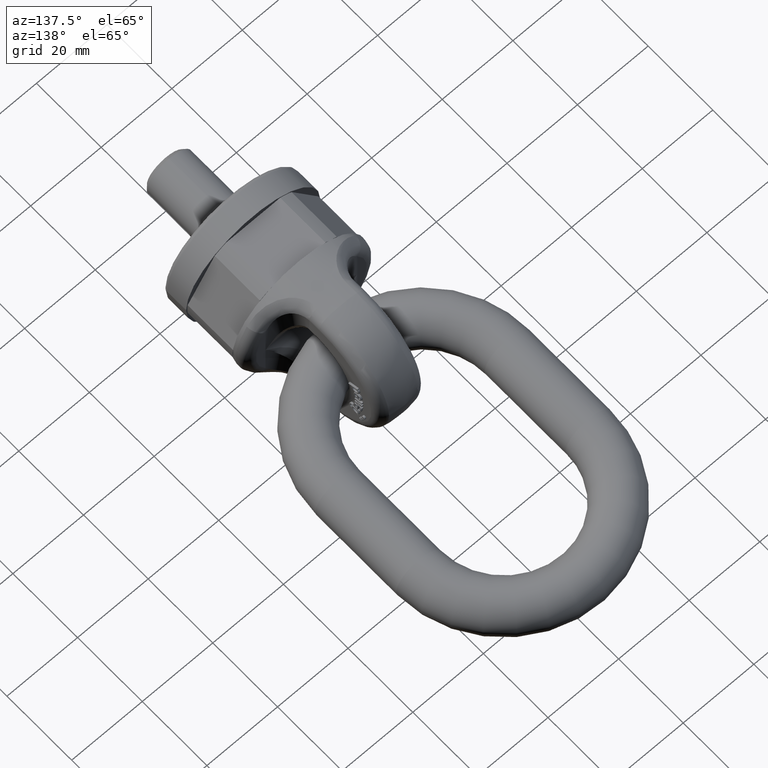
[diagram: clean part render]
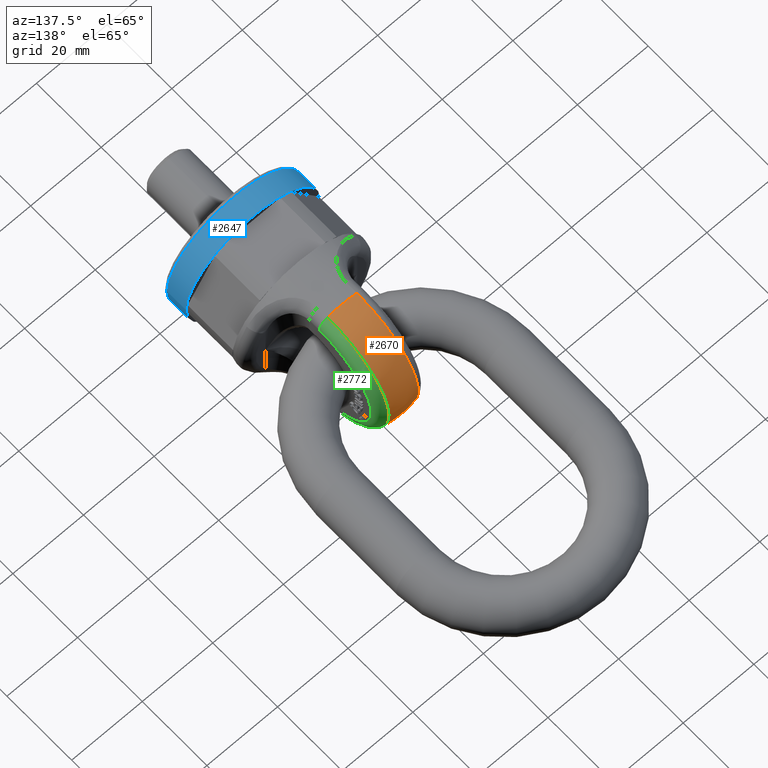
[diagram: same view with three faces highlighted in distinct colors, each labeled with its STEP entity id]
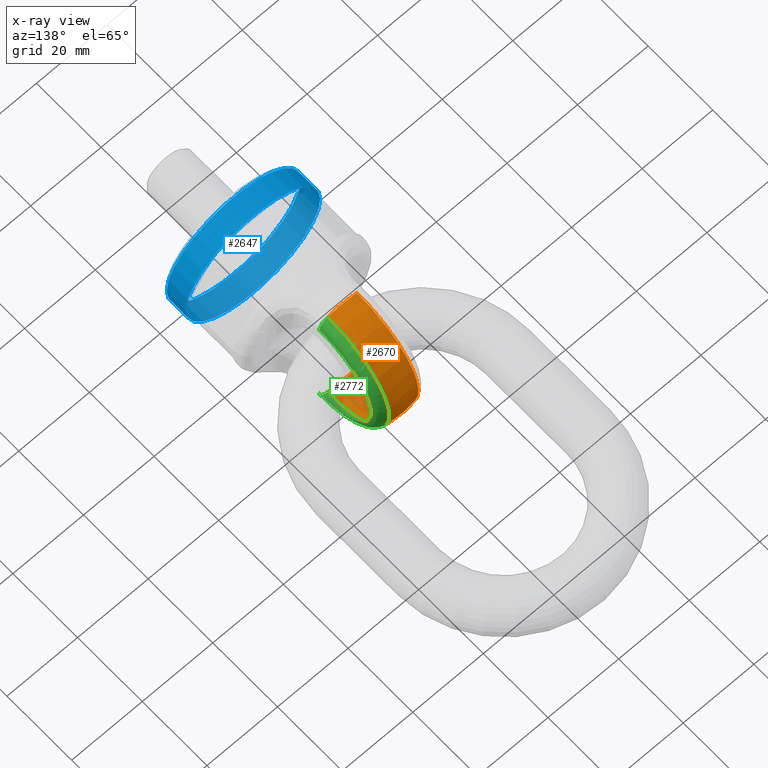
[diagram: x-ray of the same camera — body ghosted, the three highlighted faces saturated]
A machine part, auxiliary view with three faces highlighted in distinct colors.
The next image is the same camera in x-ray (body ghosted, the three faces saturated) — at least one of them is partly hidden behind the body in this view.
Their STEP definitions:

[orange] entity #2670 — the highlighted spherical surface has radius 19 mm.
#315=SPHERICAL_SURFACE('',#5660,19.);
#1822=FACE_OUTER_BOUND('',#3106,.T.);
#2670=ADVANCED_FACE('',(#1822),#315,.T.);
#3106=EDGE_LOOP('',(#3534,#3535,#3536,#3537));
#3534=ORIENTED_EDGE('',*,*,#5068,.F.);
#3535=ORIENTED_EDGE('',*,*,#5079,.T.);
#3536=ORIENTED_EDGE('',*,*,#5074,.F.);
#3537=ORIENTED_EDGE('',*,*,#5080,.T.);
#4655=VERTEX_POINT('',#7027);
#4656=VERTEX_POINT('',#7029);
#4661=VERTEX_POINT('',#7063);
#4662=VERTEX_POINT('',#7065);
#5068=EDGE_CURVE('',#4655,#4656,#5562,.T.);
#5074=EDGE_CURVE('',#4661,#4662,#5564,.T.);
#5079=EDGE_CURVE('',#4655,#4662,#5566,.T.);
#5080=EDGE_CURVE('',#4661,#4656,#5567,.T.);
#5562=CIRCLE('',#5653,18.9937982914999);
#5564=CIRCLE('',#5655,18.9937982914999);
#5566=CIRCLE('',#5658,18.5398378077452);
#5567=CIRCLE('',#5659,18.5398378077452);
#5653=AXIS2_PLACEMENT_3D('',#7028,#5969,#5970);
#5655=AXIS2_PLACEMENT_3D('',#7064,#5973,#5974);
#5658=AXIS2_PLACEMENT_3D('',#7095,#5979,#5980);
#5659=AXIS2_PLACEMENT_3D('',#7096,#5981,#5982);
#5660=AXIS2_PLACEMENT_3D('',#7097,#5983,#5984);
#5969=DIRECTION('',(0.,-1.,0.));
#5970=DIRECTION('',(0.,0.,-1.));
#5973=DIRECTION('',(0.,-1.,0.));
#5974=DIRECTION('',(0.,0.,-1.));
#5979=DIRECTION('',(1.,3.58908305374512E-16,2.34291072916505E-15));
#5980=DIRECTION('',(3.74269396305529E-16,-1.,8.31045002381911E-31));
#5981=DIRECTION('',(-1.,3.58908305374512E-16,0.));
#5982=DIRECTION('',(-3.74269396305529E-16,-1.,0.));
#5983=DIRECTION('',(6.12323399573677E-17,-1.,0.));
#5984=DIRECTION('',(1.,0.,0.));
#7027=CARTESIAN_POINT('',(-4.15624999999995,34.514586298282,-18.5334821195501));
#7028=CARTESIAN_POINT('',(0.,34.514586298282,0.));
#7029=CARTESIAN_POINT('',(4.15625,34.514586298282,-18.5334821195501));
#7063=CARTESIAN_POINT('',(4.15625,34.514586298282,18.5334821195501));
#7064=CARTESIAN_POINT('',(0.,34.514586298282,0.));
#7065=CARTESIAN_POINT('',(-4.15625000000004,34.514586298282,18.5334821195501));
#7095=CARTESIAN_POINT('',(-4.15625,35.,-9.73772271809223E-15));
#7096=CARTESIAN_POINT('',(4.15625,35.,0.));
#7097=CARTESIAN_POINT('',(0.,35.,0.));

[blue] entity #2647 — the highlighted cylindrical surface (bore or boss wall) has radius 19 mm, axis along (0, -1, 0).
#2020=CYLINDRICAL_SURFACE('',#5616,19.);
#2647=ADVANCED_FACE('',(#2997,#2998),#2020,.T.);
#2997=FACE_BOUND('',#3069,.T.);
#2998=FACE_BOUND('',#3070,.T.);
#3069=EDGE_LOOP('',(#3366));
#3070=EDGE_LOOP('',(#3367));
#3366=ORIENTED_EDGE('',*,*,#4956,.T.);
#3367=ORIENTED_EDGE('',*,*,#4943,.T.);
#4545=VERTEX_POINT('',#6576);
#4558=VERTEX_POINT('',#6603);
#4943=EDGE_CURVE('',#4545,#4545,#5539,.T.);
#4956=EDGE_CURVE('',#4558,#4558,#5546,.T.);
#5539=CIRCLE('',#5607,19.);
#5546=CIRCLE('',#5615,19.);
#5607=AXIS2_PLACEMENT_3D('',#6575,#5817,#5818);
#5615=AXIS2_PLACEMENT_3D('',#6602,#5839,#5840);
#5616=AXIS2_PLACEMENT_3D('',#6604,#5841,#5842);
#5817=DIRECTION('',(3.82702124733548E-17,-1.,0.));
#5818=DIRECTION('',(1.,4.56506177888633E-17,0.));
#5839=DIRECTION('',(-3.82702124733548E-17,1.,0.));
#5840=DIRECTION('',(1.,3.42379633416475E-17,0.));
#5841=DIRECTION('',(3.82702124733548E-17,-1.,0.));
#5842=DIRECTION('',(1.,4.56506177888633E-17,0.));
#6575=CARTESIAN_POINT('',(-2.67891487313483E-16,7.,0.));
#6576=CARTESIAN_POINT('',(19.,7.,0.));
#6602=CARTESIAN_POINT('',(-3.82702124733548E-17,0.999999999999999,0.));
#6603=CARTESIAN_POINT('',(19.,1.,0.));
#6604=CARTESIAN_POINT('',(-2.67891487313483E-16,7.,0.));

[green] entity #2772 — the highlighted toroidal blend (fillet) surface has major radius 15.6125 mm and minor (blend) radius 3 mm.
#1799=TOROIDAL_SURFACE('',#5725,15.612494995996,3.);
#1916=FACE_OUTER_BOUND('',#3216,.T.);
#2772=ADVANCED_FACE('',(#1916),#1799,.T.);
#3216=EDGE_LOOP('',(#3980,#3981,#3982,#3983));
#3980=ORIENTED_EDGE('',*,*,#5264,.T.);
#3981=ORIENTED_EDGE('',*,*,#5080,.F.);
#3982=ORIENTED_EDGE('',*,*,#5266,.F.);
#3983=ORIENTED_EDGE('',*,*,#5012,.F.);
#4602=VERTEX_POINT('',#6799);
#4603=VERTEX_POINT('',#6801);
#4656=VERTEX_POINT('',#7029);
#4661=VERTEX_POINT('',#7063);
#5012=EDGE_CURVE('',#4602,#4603,#5560,.T.);
#5080=EDGE_CURVE('',#4661,#4656,#5567,.T.);
#5264=EDGE_CURVE('',#4602,#4656,#5577,.T.);
#5266=EDGE_CURVE('',#4603,#4661,#5579,.T.);
#5560=CIRCLE('',#5648,15.612494995996);
#5567=CIRCLE('',#5659,18.5398378077452);
#5577=CIRCLE('',#5722,3.);
#5579=CIRCLE('',#5724,3.);
#5648=AXIS2_PLACEMENT_3D('',#6800,#5931,#5932);
#5659=AXIS2_PLACEMENT_3D('',#7096,#5981,#5982);
#5722=AXIS2_PLACEMENT_3D('',#8146,#6233,#6234);
#5724=AXIS2_PLACEMENT_3D('',#8190,#6237,#6238);
#5725=AXIS2_PLACEMENT_3D('',#8191,#6239,#6240);
#5931=DIRECTION('',(1.,-3.58908305374512E-16,0.));
#5932=DIRECTION('',(3.33333681084611E-16,1.,0.));
#5981=DIRECTION('',(-1.,3.58908305374512E-16,0.));
#5982=DIRECTION('',(-3.74269396305529E-16,-1.,0.));
#6233=DIRECTION('',(0.,0.999657187497484,-0.0261821978569384));
#6234=DIRECTION('',(0.,0.0261821978569388,0.999657187497484));
#6237=DIRECTION('',(0.,-0.999657187497484,-0.0261821978569384));
#6238=DIRECTION('',(0.,0.0261821978569388,-0.999657187497484));
#6239=DIRECTION('',(1.,-3.58908305374512E-16,0.));
#6240=DIRECTION('',(3.49507846009493E-16,1.,0.));
#6799=CARTESIAN_POINT('',(6.5,34.5912305669744,-15.6071428375159));
#6800=CARTESIAN_POINT('',(6.5,35.,0.));
#6801=CARTESIAN_POINT('',(6.5,34.5912305669744,15.6071428375159));
#7029=CARTESIAN_POINT('',(4.15625,34.514586298282,-18.5334821195501));
#7063=CARTESIAN_POINT('',(4.15625,34.514586298282,18.5334821195501));
#7096=CARTESIAN_POINT('',(4.15625,35.,0.));
#8146=CARTESIAN_POINT('',(3.5,34.5912305669744,-15.6071428375159));
#8190=CARTESIAN_POINT('',(3.5,34.5912305669744,15.6071428375159));
#8191=CARTESIAN_POINT('',(3.5,35.,0.));